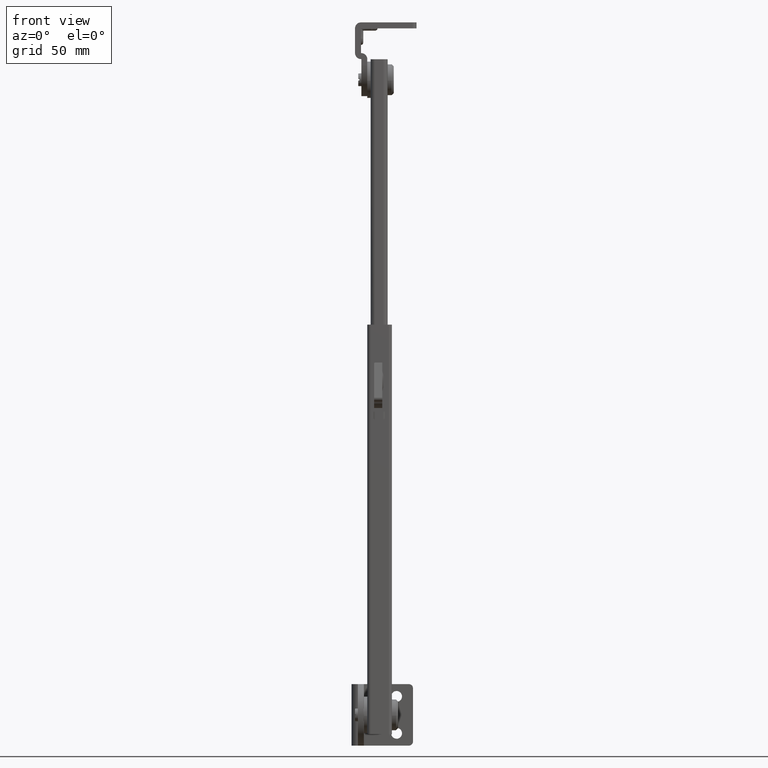
[diagram: clean part render]
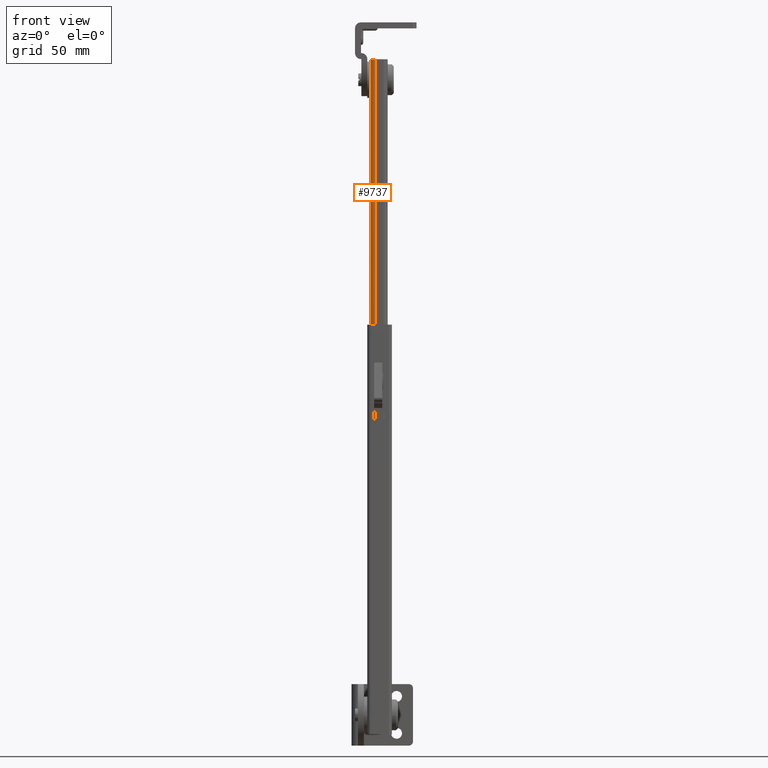
[diagram: same view with one face highlighted and labeled with its STEP entity id]
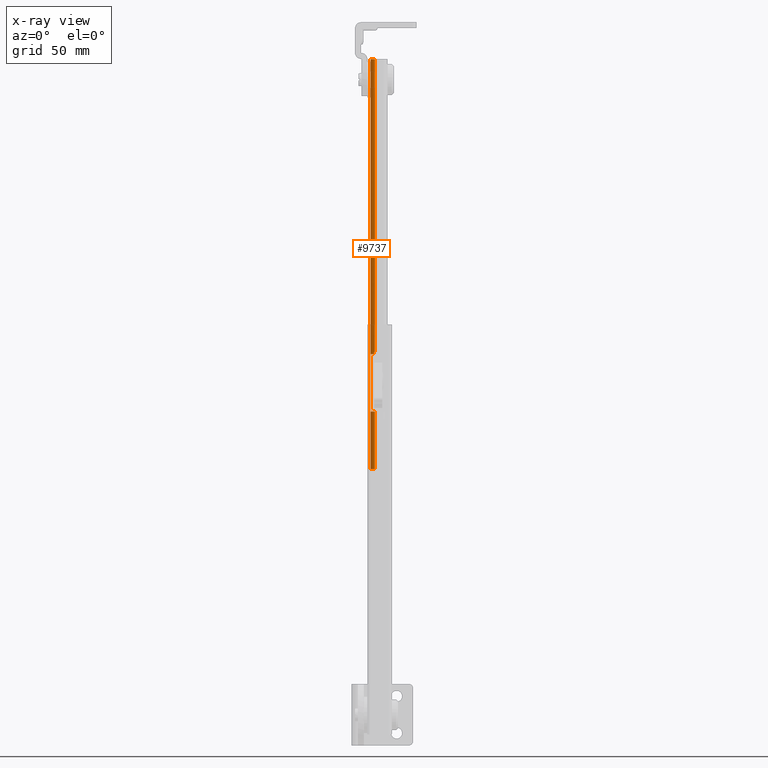
[diagram: x-ray of the same camera — body ghosted, the highlighted face saturated]
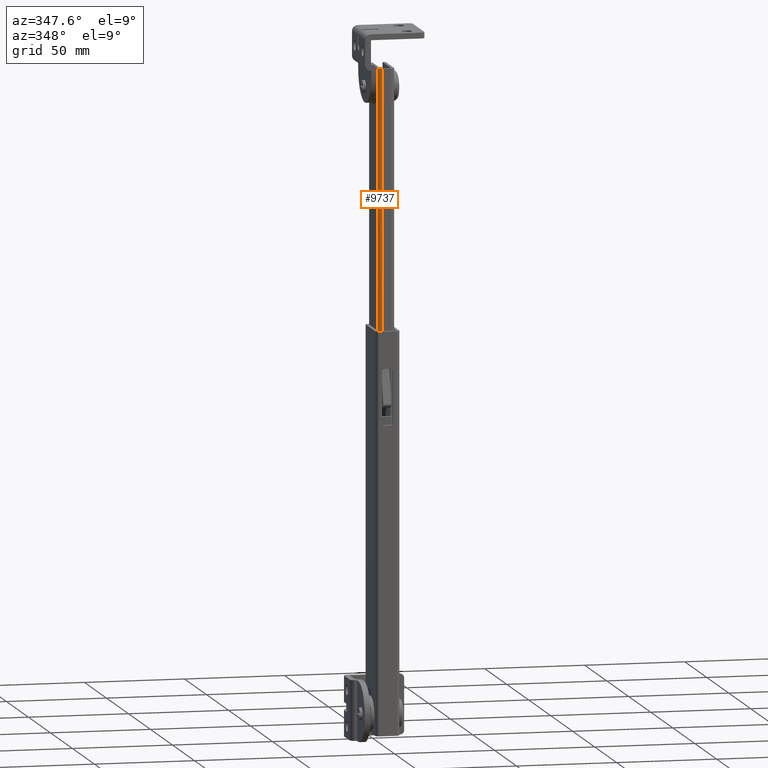
[diagram: same view with one face highlighted and labeled with its STEP entity id]
A machine part, front view. The second image highlights one B-rep face of the part: STEP entity #9737.
The next image is the same camera in x-ray: the body ghosted, the highlighted face saturated — about 0% of this face is hidden behind the body in this view.
A second angle (auxiliary view) of the same face is appended — the face is thin or edge-on in the first view.
In plain terms, the highlighted face is a freeform B-spline surface patch.
Its self-contained STEP definition (entity closure, byte-faithful):
#9358=CARTESIAN_POINT('',(-10.339601805437100,-8.900000000000109,148.0));
#9359=VERTEX_POINT('',#9358);
#9365=CARTESIAN_POINT('',(-8.299994000000000,-10.500000000000121,148.0));
#9366=VERTEX_POINT('',#9365);
#9367=CARTESIAN_POINT('',(-10.339601805437120,-8.900000000000112,148.0));
#9368=CARTESIAN_POINT('',(-9.947369535160757,-10.500000000000130,148.0));
#9369=CARTESIAN_POINT('',(-8.299994000000000,-10.500000000000130,148.0));
#9377=(BOUNDED_CURVE()B_SPLINE_CURVE(2,(#9367,#9368,#9369),.UNSPECIFIED.,.F.,.U.)CURVE()GEOMETRIC_REPRESENTATION_ITEM()QUASI_UNIFORM_CURVE()RATIONAL_B_SPLINE_CURVE((1.0,0.786795792469441,1.0))REPRESENTATION_ITEM(''));
#9378=EDGE_CURVE('',#9359,#9366,#9377,.T.);
#9393=CARTESIAN_POINT('',(-8.699997000000199,-10.461552230721200,176.0));
#9394=VERTEX_POINT('',#9393);
#9395=CARTESIAN_POINT('',(-10.339601805437100,-8.900000000000119,176.0));
#9396=VERTEX_POINT('',#9395);
#9397=CARTESIAN_POINT('',(-8.699997000000190,-10.461552230721161,176.0));
#9398=CARTESIAN_POINT('',(-10.019560545732761,-10.205517302709989,176.000000000000060));
#9399=CARTESIAN_POINT('',(-10.339601805437111,-8.900000000000123,176.0));
#9407=(BOUNDED_CURVE()B_SPLINE_CURVE(2,(#9397,#9398,#9399),.UNSPECIFIED.,.F.,.U.)CURVE()GEOMETRIC_REPRESENTATION_ITEM()QUASI_UNIFORM_CURVE()RATIONAL_B_SPLINE_CURVE((1.0,0.842239843652467,1.0))REPRESENTATION_ITEM(''));
#9408=EDGE_CURVE('',#9394,#9396,#9407,.T.);
#9450=CARTESIAN_POINT('',(-10.339601805437100,-8.900000000000119,176.0));
#9451=CARTESIAN_POINT('',(-10.339601805437100,-8.900000000000109,148.0));
#9452=QUASI_UNIFORM_CURVE('',1,(#9450,#9451),.UNSPECIFIED.,.F.,.U.);
#9453=EDGE_CURVE('',#9396,#9359,#9452,.T.);
#9574=CARTESIAN_POINT('',(-8.699997000000199,-10.461552230721200,177.0));
#9575=VERTEX_POINT('',#9574);
#9581=CARTESIAN_POINT('',(-8.699997000000199,-10.461552230721200,177.0));
#9582=CARTESIAN_POINT('',(-8.699997000000199,-10.461552230721200,176.0));
#9583=QUASI_UNIFORM_CURVE('',1,(#9581,#9582),.UNSPECIFIED.,.F.,.U.);
#9584=EDGE_CURVE('',#9575,#9394,#9583,.T.);
#9603=CARTESIAN_POINT('',(-8.299994000000000,-10.500000000000121,177.0));
#9604=VERTEX_POINT('',#9603);
#9610=CARTESIAN_POINT('',(-8.299994000000000,-10.500000000000130,177.0));
#9611=CARTESIAN_POINT('',(-8.501843274844946,-10.500000000000126,177.000000000000030));
#9612=CARTESIAN_POINT('',(-8.699997000000190,-10.461552230721161,177.0));
#9620=(BOUNDED_CURVE()B_SPLINE_CURVE(2,(#9610,#9611,#9612),.UNSPECIFIED.,.F.,.U.)CURVE()GEOMETRIC_REPRESENTATION_ITEM()QUASI_UNIFORM_CURVE()RATIONAL_B_SPLINE_CURVE((1.0,0.995412361395664,1.0))REPRESENTATION_ITEM(''));
#9621=EDGE_CURVE('',#9604,#9575,#9620,.T.);
#9667=CARTESIAN_POINT('',(-8.281668275453416,-10.499920038434890,115.0));
#9668=CARTESIAN_POINT('',(-8.281668275453416,-10.499920038434890,325.125000000000110));
#9669=CARTESIAN_POINT('',(-10.533556818224676,-10.519571972027176,114.999999999999970));
#9670=CARTESIAN_POINT('',(-10.533556818224676,-10.519571972027176,325.125000000000110));
#9671=CARTESIAN_POINT('',(-10.396077076685920,-8.271798066976931,115.0));
#9672=CARTESIAN_POINT('',(-10.396077076685920,-8.271798066976931,325.125000000000110));
#9680=(BOUNDED_SURFACE()B_SPLINE_SURFACE(1,2,((#9667,#9669,#9671),(#9668,#9670,#9672)),.UNSPECIFIED.,.F.,.F.,.U.)B_SPLINE_SURFACE_WITH_KNOTS((2,2),(3,3),(0.0,210.125000000000110),(0.0,3.652423949671837),.UNSPECIFIED.)GEOMETRIC_REPRESENTATION_ITEM()RATIONAL_B_SPLINE_SURFACE(((1.0,0.681998360062499,1.0),(1.0,0.681998360062499,1.0)))REPRESENTATION_ITEM('')SURFACE());
#9681=ORIENTED_EDGE('',*,*,#9408,.F.);
#9682=ORIENTED_EDGE('',*,*,#9584,.F.);
#9683=ORIENTED_EDGE('',*,*,#9621,.F.);
#9684=CARTESIAN_POINT('',(-8.299994000000000,-10.500000000000121,320.0));
#9685=VERTEX_POINT('',#9684);
#9686=CARTESIAN_POINT('',(-8.299994000000000,-10.500000000000121,320.0));
#9687=CARTESIAN_POINT('',(-8.299994000000000,-10.500000000000121,177.0));
#9688=QUASI_UNIFORM_CURVE('',1,(#9686,#9687),.UNSPECIFIED.,.F.,.U.);
#9689=EDGE_CURVE('',#9685,#9604,#9688,.T.);
#9690=ORIENTED_EDGE('',*,*,#9689,.F.);
#9691=CARTESIAN_POINT('',(-10.399994000000000,-8.400000000000130,320.0));
#9692=VERTEX_POINT('',#9691);
#9693=CARTESIAN_POINT('',(-10.399994000000000,-8.400000000000130,320.0));
#9694=CARTESIAN_POINT('',(-10.399994000000000,-10.500000000000130,319.999999999999940));
#9695=CARTESIAN_POINT('',(-8.299994000000000,-10.500000000000130,320.0));
#9703=(BOUNDED_CURVE()B_SPLINE_CURVE(2,(#9693,#9694,#9695),.UNSPECIFIED.,.F.,.U.)CURVE()GEOMETRIC_REPRESENTATION_ITEM()QUASI_UNIFORM_CURVE()RATIONAL_B_SPLINE_CURVE((1.0,0.707106781186548,1.0))REPRESENTATION_ITEM(''));
#9704=EDGE_CURVE('',#9692,#9685,#9703,.T.);
#9705=ORIENTED_EDGE('',*,*,#9704,.F.);
#9706=CARTESIAN_POINT('',(-10.399994000000000,-8.400000000000130,120.0));
#9707=VERTEX_POINT('',#9706);
#9708=CARTESIAN_POINT('',(-10.399994000000000,-8.400000000000130,120.0));
#9709=CARTESIAN_POINT('',(-10.399994000000000,-8.400000000000130,320.0));
#9710=QUASI_UNIFORM_CURVE('',1,(#9708,#9709),.UNSPECIFIED.,.F.,.U.);
#9711=EDGE_CURVE('',#9707,#9692,#9710,.T.);
#9712=ORIENTED_EDGE('',*,*,#9711,.F.);
#9713=CARTESIAN_POINT('',(-8.299994000000000,-10.500000000000121,120.0));
#9714=VERTEX_POINT('',#9713);
#9715=CARTESIAN_POINT('',(-8.299994000000000,-10.500000000000130,120.0));
#9716=CARTESIAN_POINT('',(-10.399994000000000,-10.500000000000130,120.0));
#9717=CARTESIAN_POINT('',(-10.399994000000000,-8.400000000000130,120.0));
#9725=(BOUNDED_CURVE()B_SPLINE_CURVE(2,(#9715,#9716,#9717),.UNSPECIFIED.,.F.,.U.)CURVE()GEOMETRIC_REPRESENTATION_ITEM()QUASI_UNIFORM_CURVE()RATIONAL_B_SPLINE_CURVE((1.0,0.707106781186548,1.0))REPRESENTATION_ITEM(''));
#9726=EDGE_CURVE('',#9714,#9707,#9725,.T.);
#9727=ORIENTED_EDGE('',*,*,#9726,.F.);
#9728=CARTESIAN_POINT('',(-8.299994000000000,-10.500000000000121,148.0));
#9729=CARTESIAN_POINT('',(-8.299994000000000,-10.500000000000121,120.0));
#9730=QUASI_UNIFORM_CURVE('',1,(#9728,#9729),.UNSPECIFIED.,.F.,.U.);
#9731=EDGE_CURVE('',#9366,#9714,#9730,.T.);
#9732=ORIENTED_EDGE('',*,*,#9731,.F.);
#9733=ORIENTED_EDGE('',*,*,#9378,.F.);
#9734=ORIENTED_EDGE('',*,*,#9453,.F.);
#9735=EDGE_LOOP('',(#9681,#9682,#9683,#9690,#9705,#9712,#9727,#9732,#9733,#9734));
#9736=FACE_OUTER_BOUND('',#9735,.T.);
#9737=ADVANCED_FACE('',(#9736),#9680,.T.);